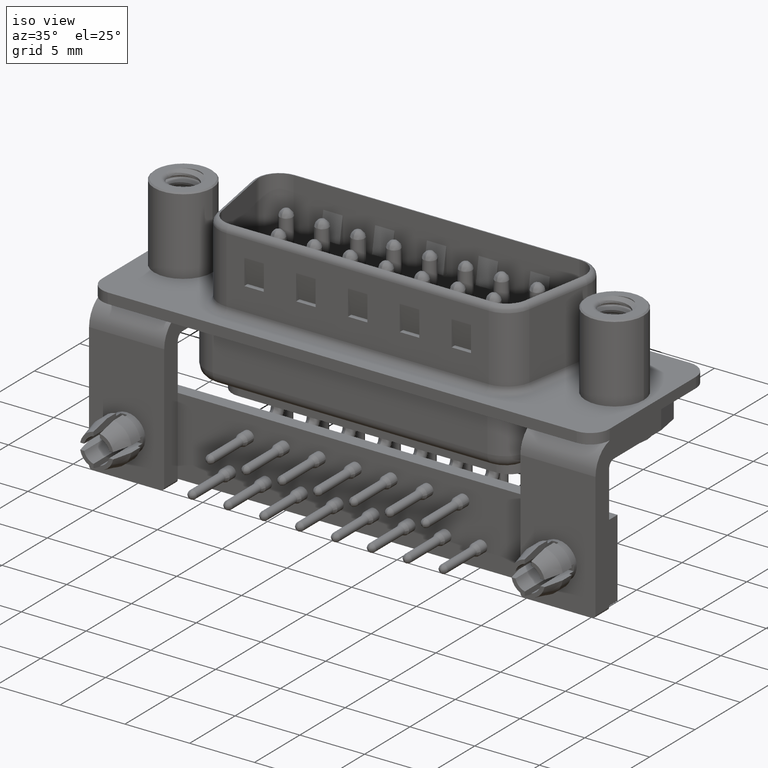
[diagram: clean part render]
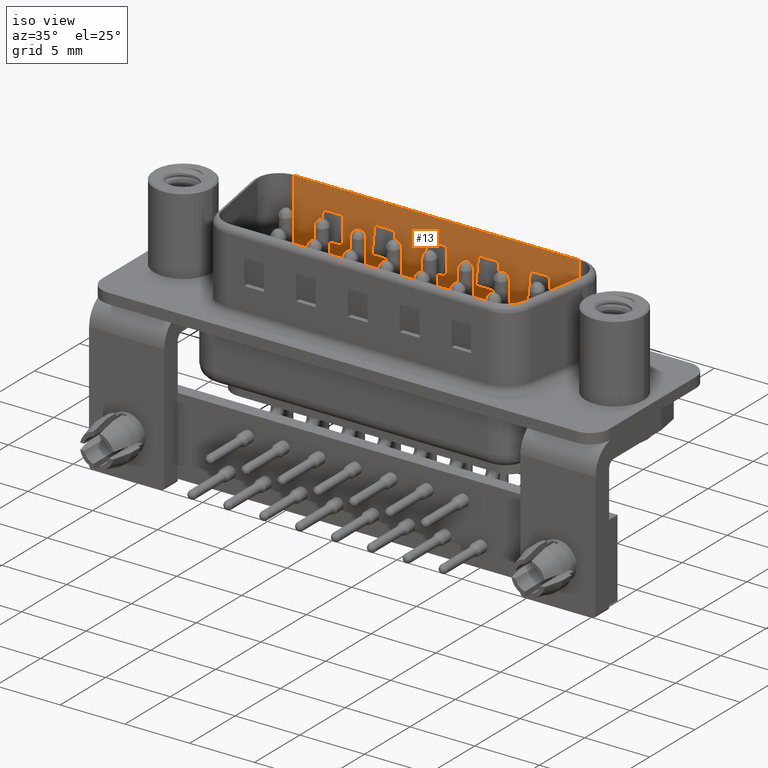
[diagram: same view with one face highlighted and labeled with its STEP entity id]
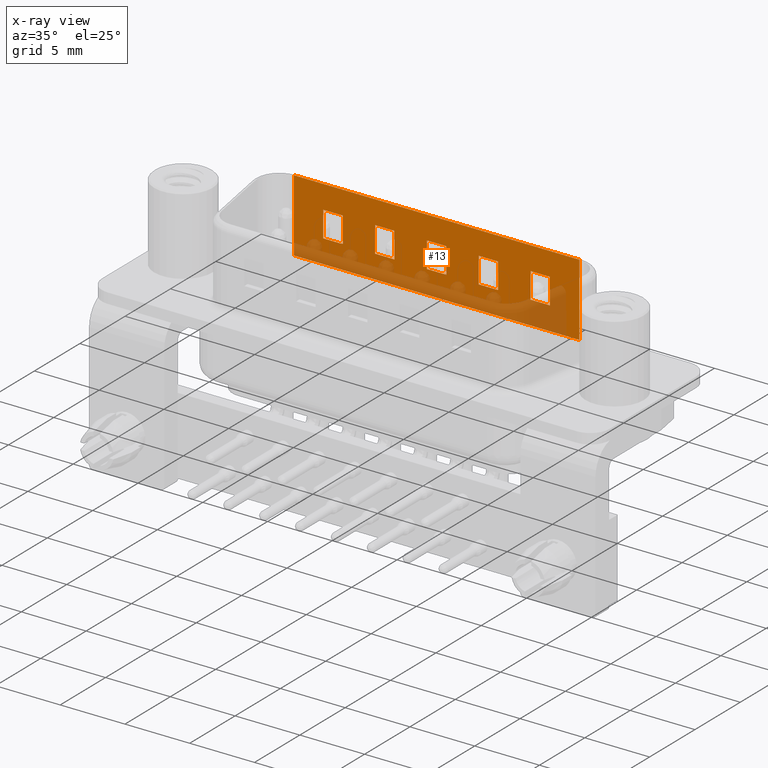
[diagram: x-ray of the same camera — body ghosted, the highlighted face saturated]
A machine part, iso view. The second image highlights one B-rep face of the part: STEP entity #13.
The next image is the same camera in x-ray: the body ghosted, the highlighted face saturated — about 26% of this face is hidden behind the body in this view.
In plain terms, the highlighted planar face has unit normal (0, -1, 0).
Its self-contained STEP definition (entity closure, byte-faithful):
#13 = ADVANCED_FACE ( 'NONE', ( #2399, #18294, #8007, #12863, #7350, #1719 ), #5921, .T. ) ;
#56 = VECTOR ( 'NONE', #4382, 1000.000000000000000 ) ;
#73 = LINE ( 'NONE', #7277, #5121 ) ;
#150 = VERTEX_POINT ( 'NONE', #9506 ) ;
#220 = VERTEX_POINT ( 'NONE', #15710 ) ;
#239 = DIRECTION ( 'NONE',  ( -0.0000000000000000000, 0.0000000000000000000, 1.000000000000000000 ) ) ;
#310 = VERTEX_POINT ( 'NONE', #27207 ) ;
#341 = EDGE_CURVE ( 'NONE', #23436, #21589, #27222, .T. ) ;
#427 = DIRECTION ( 'NONE',  ( 0.0000000000000000000, 0.0000000000000000000, -1.000000000000000000 ) ) ;
#456 = EDGE_CURVE ( 'NONE', #21723, #27129, #18266, .T. ) ;
#460 = ORIENTED_EDGE ( 'NONE', *, *, #5831, .F. ) ;
#664 = VECTOR ( 'NONE', #13524, 1000.000000000000000 ) ;
#694 = VERTEX_POINT ( 'NONE', #9833 ) ;
#769 = CARTESIAN_POINT ( 'NONE',  ( 5.624999999999994700, 4.149999999999994100, 4.704948974278316600 ) ) ;
#919 = VERTEX_POINT ( 'NONE', #9855 ) ;
#926 = VERTEX_POINT ( 'NONE', #6955 ) ;
#1103 = LINE ( 'NONE', #5698, #11665 ) ;
#1227 = CARTESIAN_POINT ( 'NONE',  ( 19.89999999999999500, 4.149999999999993200, 2.724867081101116600 ) ) ;
#1394 = EDGE_CURVE ( 'NONE', #919, #6876, #11569, .T. ) ;
#1441 = CARTESIAN_POINT ( 'NONE',  ( 1.624999999999994400, 4.149999999999994100, 2.704948974278317000 ) ) ;
#1573 = EDGE_CURVE ( 'NONE', #23644, #11174, #18583, .T. ) ;
#1682 = VERTEX_POINT ( 'NONE', #25752 ) ;
#1712 = VERTEX_POINT ( 'NONE', #21658 ) ;
#1719 = FACE_BOUND ( 'NONE', #11514, .T. ) ;
#1733 = DIRECTION ( 'NONE',  ( -0.0000000000000000000, 0.0000000000000000000, 1.000000000000000000 ) ) ;
#1798 = ORIENTED_EDGE ( 'NONE', *, *, #26922, .F. ) ;
#1858 = VECTOR ( 'NONE', #18512, 1000.000000000000000 ) ;
#1937 = CARTESIAN_POINT ( 'NONE',  ( 23.89999999999999500, 4.149999999999993200, 2.724867081101116600 ) ) ;
#1957 = VECTOR ( 'NONE', #19926, 1000.000000000000000 ) ;
#2009 = ORIENTED_EDGE ( 'NONE', *, *, #24426, .F. ) ;
#2027 = VECTOR ( 'NONE', #19900, 1000.000000000000000 ) ;
#2088 = VECTOR ( 'NONE', #427, 1000.000000000000000 ) ;
#2165 = VERTEX_POINT ( 'NONE', #15493 ) ;
#2191 = EDGE_CURVE ( 'NONE', #13900, #310, #6974, .T. ) ;
#2368 = VECTOR ( 'NONE', #13812, 1000.000000000000000 ) ;
#2397 = CARTESIAN_POINT ( 'NONE',  ( 19.89999999999999500, 4.149999999999994100, 2.704948974278317000 ) ) ;
#2399 = FACE_OUTER_BOUND ( 'NONE', #15885, .T. ) ;
#2437 = VECTOR ( 'NONE', #8133, 1000.000000000000000 ) ;
#2475 = EDGE_CURVE ( 'NONE', #926, #19681, #26831, .T. ) ;
#2478 = LINE ( 'NONE', #3184, #19669 ) ;
#2655 = VERTEX_POINT ( 'NONE', #17473 ) ;
#3184 = CARTESIAN_POINT ( 'NONE',  ( 11.89999999999999300, 4.149999999999994100, 6.520000000000000500 ) ) ;
#3186 = CARTESIAN_POINT ( 'NONE',  ( 21.39999999999999100, 4.149999999999989700, 2.704948974278317000 ) ) ;
#3203 = ORIENTED_EDGE ( 'NONE', *, *, #15417, .F. ) ;
#3664 = ORIENTED_EDGE ( 'NONE', *, *, #18358, .F. ) ;
#3677 = EDGE_CURVE ( 'NONE', #23435, #919, #22025, .T. ) ;
#3999 = EDGE_CURVE ( 'NONE', #23173, #10489, #15522, .T. ) ;
#4382 = DIRECTION ( 'NONE',  ( 0.0000000000000000000, 0.0000000000000000000, -1.000000000000000000 ) ) ;
#4739 = EDGE_CURVE ( 'NONE', #13028, #150, #1103, .T. ) ;
#4947 = VECTOR ( 'NONE', #18346, 1000.000000000000000 ) ;
#5121 = VECTOR ( 'NONE', #11470, 1000.000000000000000 ) ;
#5334 = LINE ( 'NONE', #8179, #26210 ) ;
#5604 = DIRECTION ( 'NONE',  ( 0.0000000000000000000, -1.000000000000000000, 0.0000000000000000000 ) ) ;
#5605 = DIRECTION ( 'NONE',  ( -0.0000000000000000000, 0.0000000000000000000, 1.000000000000000000 ) ) ;
#5696 = DIRECTION ( 'NONE',  ( 0.0000000000000000000, -0.0000000000000000000, -1.000000000000000000 ) ) ;
#5698 = CARTESIAN_POINT ( 'NONE',  ( 21.39999999999999100, 4.149999999999994100, 6.520000000000000500 ) ) ;
#5831 = EDGE_CURVE ( 'NONE', #11174, #22826, #16747, .T. ) ;
#5921 = PLANE ( 'NONE',  #6023 ) ;
#6023 = AXIS2_PLACEMENT_3D ( 'NONE', #19923, #5604, #5696 ) ;
#6312 = VECTOR ( 'NONE', #239, 1000.000000000000000 ) ;
#6453 = CARTESIAN_POINT ( 'NONE',  ( 15.89999999999999000, 4.149999999999994100, 2.704948974278317000 ) ) ;
#6666 = ORIENTED_EDGE ( 'NONE', *, *, #17248, .F. ) ;
#6695 = VECTOR ( 'NONE', #24115, 1000.000000000000000 ) ;
#6767 = CARTESIAN_POINT ( 'NONE',  ( 21.39999999999999100, 4.149999999999989700, 4.704948974278316600 ) ) ;
#6818 = DIRECTION ( 'NONE',  ( -1.000000000000000000, 0.0000000000000000000, 0.0000000000000000000 ) ) ;
#6876 = VERTEX_POINT ( 'NONE', #20628 ) ;
#6955 = CARTESIAN_POINT ( 'NONE',  ( 11.89999999999999300, 4.149999999999989700, 4.704948974278316600 ) ) ;
#6974 = LINE ( 'NONE', #12869, #6312 ) ;
#7204 = VERTEX_POINT ( 'NONE', #21816 ) ;
#7277 = CARTESIAN_POINT ( 'NONE',  ( 5.624999999999994700, 4.149999999999994100, 2.704948974278317000 ) ) ;
#7350 = FACE_BOUND ( 'NONE', #17813, .T. ) ;
#7533 = VERTEX_POINT ( 'NONE', #6453 ) ;
#7565 = CARTESIAN_POINT ( 'NONE',  ( 25.39999999999999100, 4.149999999999994100, 6.520000000000000500 ) ) ;
#7587 = LINE ( 'NONE', #13683, #1957 ) ;
#7644 = CARTESIAN_POINT ( 'NONE',  ( 5.624999999999994700, 4.149999999999994100, 6.520000000000000500 ) ) ;
#7716 = ORIENTED_EDGE ( 'NONE', *, *, #2191, .F. ) ;
#7810 = EDGE_CURVE ( 'NONE', #15138, #23435, #8306, .T. ) ;
#7949 = VECTOR ( 'NONE', #25595, 1000.000000000000000 ) ;
#8007 = FACE_BOUND ( 'NONE', #9767, .T. ) ;
#8036 = ORIENTED_EDGE ( 'NONE', *, *, #3999, .F. ) ;
#8130 = CARTESIAN_POINT ( 'NONE',  ( 17.39999999999999100, 4.149999999999989700, 2.704948974278317000 ) ) ;
#8133 = DIRECTION ( 'NONE',  ( 0.0000000000000000000, 0.0000000000000000000, -1.000000000000000000 ) ) ;
#8179 = CARTESIAN_POINT ( 'NONE',  ( 15.89999999999999300, 4.149999999999994100, 6.520000000000000500 ) ) ;
#8217 = LINE ( 'NONE', #11238, #24781 ) ;
#8278 = DIRECTION ( 'NONE',  ( 1.000000000000000000, 0.0000000000000000000, 0.0000000000000000000 ) ) ;
#8306 = LINE ( 'NONE', #25918, #13787 ) ;
#8316 = DIRECTION ( 'NONE',  ( 0.0000000000000000000, 0.0000000000000000000, -1.000000000000000000 ) ) ;
#8539 = CARTESIAN_POINT ( 'NONE',  ( 27.67499999999999400, 4.149999999999994100, 6.500000000000000000 ) ) ;
#8667 = DIRECTION ( 'NONE',  ( 0.0000000000000000000, 0.0000000000000000000, -1.000000000000000000 ) ) ;
#8712 = DIRECTION ( 'NONE',  ( -1.000000000000000000, 0.0000000000000000000, 0.0000000000000000000 ) ) ;
#8788 = EDGE_CURVE ( 'NONE', #23604, #21723, #27151, .T. ) ;
#8869 = ORIENTED_EDGE ( 'NONE', *, *, #26240, .F. ) ;
#9005 = ORIENTED_EDGE ( 'NONE', *, *, #26636, .F. ) ;
#9079 = ORIENTED_EDGE ( 'NONE', *, *, #7810, .F. ) ;
#9251 = ORIENTED_EDGE ( 'NONE', *, *, #11319, .F. ) ;
#9506 = CARTESIAN_POINT ( 'NONE',  ( 21.39999999999999100, 4.149999999999993200, 2.724867081101116600 ) ) ;
#9611 = CARTESIAN_POINT ( 'NONE',  ( 9.399999999999993200, 4.149999999999994100, 6.520000000000000500 ) ) ;
#9644 = VECTOR ( 'NONE', #8316, 1000.000000000000000 ) ;
#9647 = DIRECTION ( 'NONE',  ( -0.0000000000000000000, 0.0000000000000000000, 1.000000000000000000 ) ) ;
#9741 = DIRECTION ( 'NONE',  ( -0.0000000000000000000, -0.0000000000000000000, -1.000000000000000000 ) ) ;
#9767 = EDGE_LOOP ( 'NONE', ( #26127, #26336, #3203, #20969, #24113, #3664 ) ) ;
#9833 = CARTESIAN_POINT ( 'NONE',  ( 7.899999999999994100, 4.149999999999994100, 2.704948974278317000 ) ) ;
#9855 = CARTESIAN_POINT ( 'NONE',  ( 27.67499999999999400, 4.149999999999994100, 0.8999999999999998000 ) ) ;
#10072 = VECTOR ( 'NONE', #8278, 1000.000000000000000 ) ;
#10090 = VECTOR ( 'NONE', #14122, 1000.000000000000000 ) ;
#10124 = DIRECTION ( 'NONE',  ( -0.0000000000000000000, 0.0000000000000000000, 1.000000000000000000 ) ) ;
#10266 = VERTEX_POINT ( 'NONE', #6767 ) ;
#10288 = EDGE_LOOP ( 'NONE', ( #25810, #2009, #9005, #26943, #11693, #23045 ) ) ;
#10330 = VECTOR ( 'NONE', #8712, 1000.000000000000000 ) ;
#10396 = VECTOR ( 'NONE', #24980, 1000.000000000000000 ) ;
#10472 = ORIENTED_EDGE ( 'NONE', *, *, #456, .F. ) ;
#10489 = VERTEX_POINT ( 'NONE', #21920 ) ;
#10610 = CARTESIAN_POINT ( 'NONE',  ( 13.62499999999999500, 4.149999999999994100, 4.704948974278316600 ) ) ;
#10660 = VECTOR ( 'NONE', #15395, 1000.000000000000000 ) ;
#10669 = EDGE_CURVE ( 'NONE', #310, #7204, #18925, .T. ) ;
#10697 = EDGE_CURVE ( 'NONE', #22826, #13028, #18288, .T. ) ;
#10873 = VECTOR ( 'NONE', #9647, 1000.000000000000000 ) ;
#11060 = CARTESIAN_POINT ( 'NONE',  ( -2.375000000000005800, 4.149999999999994100, 2.704948974278317000 ) ) ;
#11128 = CARTESIAN_POINT ( 'NONE',  ( 13.62499999999999500, 4.149999999999994100, 2.704948974278317000 ) ) ;
#11174 = VERTEX_POINT ( 'NONE', #1227 ) ;
#11238 = CARTESIAN_POINT ( 'NONE',  ( 13.39999999999999300, 4.149999999999994100, 6.520000000000000500 ) ) ;
#11319 = EDGE_CURVE ( 'NONE', #19112, #7533, #5334, .T. ) ;
#11470 = DIRECTION ( 'NONE',  ( 1.000000000000000000, 0.0000000000000000000, 0.0000000000000000000 ) ) ;
#11514 = EDGE_LOOP ( 'NONE', ( #7716, #16245, #9251, #21549, #11944, #13276 ) ) ;
#11569 = LINE ( 'NONE', #18110, #16342 ) ;
#11665 = VECTOR ( 'NONE', #5605, 1000.000000000000000 ) ;
#11693 = ORIENTED_EDGE ( 'NONE', *, *, #15088, .F. ) ;
#11761 = EDGE_LOOP ( 'NONE', ( #6666, #8036, #8869, #25647, #10472, #16989 ) ) ;
#11835 = CARTESIAN_POINT ( 'NONE',  ( 23.89999999999999500, 4.149999999999994100, 2.704948974278317000 ) ) ;
#11935 = DIRECTION ( 'NONE',  ( 1.000000000000000000, 0.0000000000000000000, 0.0000000000000000000 ) ) ;
#11944 = ORIENTED_EDGE ( 'NONE', *, *, #17149, .F. ) ;
#12124 = CARTESIAN_POINT ( 'NONE',  ( 21.39999999999999500, 4.149999999999994100, 6.520000000000000500 ) ) ;
#12205 = CARTESIAN_POINT ( 'NONE',  ( 17.39999999999999500, 4.149999999999994100, 6.520000000000000500 ) ) ;
#12364 = DIRECTION ( 'NONE',  ( 0.0000000000000000000, 0.0000000000000000000, -1.000000000000000000 ) ) ;
#12449 = DIRECTION ( 'NONE',  ( 0.0000000000000000000, 0.0000000000000000000, -1.000000000000000000 ) ) ;
#12568 = LINE ( 'NONE', #1441, #22877 ) ;
#12863 = FACE_BOUND ( 'NONE', #10288, .T. ) ;
#12869 = CARTESIAN_POINT ( 'NONE',  ( 17.39999999999999100, 4.149999999999994100, 6.520000000000000500 ) ) ;
#12979 = CARTESIAN_POINT ( 'NONE',  ( 9.624999999999994700, 4.149999999999994100, 4.704948974278316600 ) ) ;
#13028 = VERTEX_POINT ( 'NONE', #3186 ) ;
#13227 = LINE ( 'NONE', #23346, #2088 ) ;
#13276 = ORIENTED_EDGE ( 'NONE', *, *, #10669, .F. ) ;
#13408 = CARTESIAN_POINT ( 'NONE',  ( 19.89999999999999500, 4.149999999999989700, 4.704948974278316600 ) ) ;
#13524 = DIRECTION ( 'NONE',  ( -0.0000000000000000000, 0.0000000000000000000, 1.000000000000000000 ) ) ;
#13683 = CARTESIAN_POINT ( 'NONE',  ( 7.899999999999994100, 4.149999999999994100, 6.520000000000000500 ) ) ;
#13787 = VECTOR ( 'NONE', #19582, 1000.000000000000000 ) ;
#13812 = DIRECTION ( 'NONE',  ( -1.000000000000000000, 0.0000000000000000000, 0.0000000000000000000 ) ) ;
#13860 = EDGE_CURVE ( 'NONE', #150, #10266, #14924, .T. ) ;
#13900 = VERTEX_POINT ( 'NONE', #8130 ) ;
#14122 = DIRECTION ( 'NONE',  ( -0.0000000000000000000, 0.0000000000000000000, 1.000000000000000000 ) ) ;
#14324 = VERTEX_POINT ( 'NONE', #21922 ) ;
#14448 = CARTESIAN_POINT ( 'NONE',  ( 7.899999999999994100, 4.149999999999994100, 6.520000000000000500 ) ) ;
#14487 = CARTESIAN_POINT ( 'NONE',  ( -2.375000000000005800, 4.149999999999994100, 4.704948974278316600 ) ) ;
#14924 = LINE ( 'NONE', #12124, #26089 ) ;
#15088 = EDGE_CURVE ( 'NONE', #2165, #2655, #15832, .T. ) ;
#15092 = LINE ( 'NONE', #14448, #9644 ) ;
#15138 = VERTEX_POINT ( 'NONE', #22992 ) ;
#15395 = DIRECTION ( 'NONE',  ( -1.000000000000000000, 0.0000000000000000000, 0.0000000000000000000 ) ) ;
#15412 = LINE ( 'NONE', #12979, #20224 ) ;
#15417 = EDGE_CURVE ( 'NONE', #19681, #220, #2478, .T. ) ;
#15493 = CARTESIAN_POINT ( 'NONE',  ( 9.399999999999991500, 4.149999999999989700, 4.704948974278316600 ) ) ;
#15522 = LINE ( 'NONE', #11128, #10072 ) ;
#15538 = LINE ( 'NONE', #26649, #10090 ) ;
#15637 = VERTEX_POINT ( 'NONE', #26816 ) ;
#15710 = CARTESIAN_POINT ( 'NONE',  ( 11.89999999999999300, 4.149999999999994100, 2.704948974278317000 ) ) ;
#15772 = LINE ( 'NONE', #21031, #10330 ) ;
#15832 = LINE ( 'NONE', #14487, #10396 ) ;
#15885 = EDGE_LOOP ( 'NONE', ( #9079, #23097, #22844, #24808 ) ) ;
#16245 = ORIENTED_EDGE ( 'NONE', *, *, #20726, .F. ) ;
#16297 = LINE ( 'NONE', #7565, #10873 ) ;
#16342 = VECTOR ( 'NONE', #18922, 1000.000000000000000 ) ;
#16378 = CARTESIAN_POINT ( 'NONE',  ( 9.624999999999994700, 4.149999999999994100, 2.704948974278317000 ) ) ;
#16512 = ORIENTED_EDGE ( 'NONE', *, *, #1573, .F. ) ;
#16747 = LINE ( 'NONE', #18703, #56 ) ;
#16989 = ORIENTED_EDGE ( 'NONE', *, *, #8788, .F. ) ;
#17149 = EDGE_CURVE ( 'NONE', #7204, #1682, #21577, .T. ) ;
#17248 = EDGE_CURVE ( 'NONE', #10489, #23604, #16297, .T. ) ;
#17473 = CARTESIAN_POINT ( 'NONE',  ( 7.899999999999994100, 4.149999999999989700, 4.704948974278316600 ) ) ;
#17637 = VECTOR ( 'NONE', #26871, 1000.000000000000000 ) ;
#17667 = DIRECTION ( 'NONE',  ( 0.0000000000000000000, 0.0000000000000000000, -1.000000000000000000 ) ) ;
#17813 = EDGE_LOOP ( 'NONE', ( #23902, #22081, #460, #16512, #1798, #26450 ) ) ;
#17870 = EDGE_CURVE ( 'NONE', #2655, #15637, #7587, .T. ) ;
#17916 = LINE ( 'NONE', #22725, #22829 ) ;
#18020 = CARTESIAN_POINT ( 'NONE',  ( 9.399999999999991500, 4.149999999999989700, 2.704948974278317000 ) ) ;
#18079 = CARTESIAN_POINT ( 'NONE',  ( 15.89999999999999300, 4.149999999999993200, 2.724867081101116600 ) ) ;
#18110 = CARTESIAN_POINT ( 'NONE',  ( 5.624999999999994700, 4.149999999999994100, 0.8999999999999998000 ) ) ;
#18266 = LINE ( 'NONE', #10610, #2368 ) ;
#18288 = LINE ( 'NONE', #16378, #17637 ) ;
#18294 = FACE_BOUND ( 'NONE', #11761, .T. ) ;
#18333 = LINE ( 'NONE', #20441, #2437 ) ;
#18346 = DIRECTION ( 'NONE',  ( -0.0000000000000000000, 0.0000000000000000000, 1.000000000000000000 ) ) ;
#18358 = EDGE_CURVE ( 'NONE', #21589, #14324, #8217, .T. ) ;
#18512 = DIRECTION ( 'NONE',  ( 0.0000000000000000000, -0.0000000000000000000, -1.000000000000000000 ) ) ;
#18583 = LINE ( 'NONE', #22871, #2027 ) ;
#18666 = CARTESIAN_POINT ( 'NONE',  ( 27.67499999999999400, 4.149999999999994100, 6.520000000000000500 ) ) ;
#18703 = CARTESIAN_POINT ( 'NONE',  ( 19.89999999999999500, 4.149999999999994100, 6.520000000000000500 ) ) ;
#18922 = DIRECTION ( 'NONE',  ( -1.000000000000000000, -0.0000000000000000000, -0.0000000000000000000 ) ) ;
#18925 = LINE ( 'NONE', #12205, #23880 ) ;
#19112 = VERTEX_POINT ( 'NONE', #18079 ) ;
#19582 = DIRECTION ( 'NONE',  ( 1.000000000000000000, 0.0000000000000000000, 0.0000000000000000000 ) ) ;
#19669 = VECTOR ( 'NONE', #17667, 1000.000000000000000 ) ;
#19681 = VERTEX_POINT ( 'NONE', #19932 ) ;
#19781 = EDGE_CURVE ( 'NONE', #26458, #1712, #15538, .T. ) ;
#19900 = DIRECTION ( 'NONE',  ( 0.0000000000000000000, 0.0000000000000000000, -1.000000000000000000 ) ) ;
#19923 = CARTESIAN_POINT ( 'NONE',  ( 5.624999999999994700, 4.149999999999994100, 6.520000000000000500 ) ) ;
#19926 = DIRECTION ( 'NONE',  ( 0.0000000000000000000, 0.0000000000000000000, -1.000000000000000000 ) ) ;
#19932 = CARTESIAN_POINT ( 'NONE',  ( 11.89999999999999300, 4.149999999999993200, 2.724867081101116600 ) ) ;
#20224 = VECTOR ( 'NONE', #6818, 1000.000000000000000 ) ;
#20441 = CARTESIAN_POINT ( 'NONE',  ( 15.89999999999999300, 4.149999999999994100, 6.520000000000000500 ) ) ;
#20628 = CARTESIAN_POINT ( 'NONE',  ( 5.624999999999994700, 4.149999999999994100, 0.8999999999999998000 ) ) ;
#20706 = CARTESIAN_POINT ( 'NONE',  ( 13.39999999999999100, 4.149999999999993200, 2.724867081101116600 ) ) ;
#20726 = EDGE_CURVE ( 'NONE', #7533, #13900, #73, .T. ) ;
#20850 = CARTESIAN_POINT ( 'NONE',  ( 13.39999999999999100, 4.149999999999989700, 2.704948974278317000 ) ) ;
#20969 = ORIENTED_EDGE ( 'NONE', *, *, #2475, .F. ) ;
#21031 = CARTESIAN_POINT ( 'NONE',  ( 1.624999999999994400, 4.149999999999994100, 4.704948974278316600 ) ) ;
#21130 = VECTOR ( 'NONE', #8667, 1000.000000000000000 ) ;
#21487 = EDGE_CURVE ( 'NONE', #1682, #19112, #18333, .T. ) ;
#21529 = VERTEX_POINT ( 'NONE', #1937 ) ;
#21549 = ORIENTED_EDGE ( 'NONE', *, *, #21487, .F. ) ;
#21577 = LINE ( 'NONE', #769, #10660 ) ;
#21589 = VERTEX_POINT ( 'NONE', #20706 ) ;
#21658 = CARTESIAN_POINT ( 'NONE',  ( 9.399999999999991500, 4.149999999999993200, 2.724867081101116600 ) ) ;
#21723 = VERTEX_POINT ( 'NONE', #25397 ) ;
#21816 = CARTESIAN_POINT ( 'NONE',  ( 17.39999999999999100, 4.149999999999989700, 4.704948974278316600 ) ) ;
#21838 = LINE ( 'NONE', #7644, #26870 ) ;
#21864 = CARTESIAN_POINT ( 'NONE',  ( 23.89999999999999500, 4.149999999999989700, 4.704948974278316600 ) ) ;
#21872 = LINE ( 'NONE', #9611, #6695 ) ;
#21920 = CARTESIAN_POINT ( 'NONE',  ( 25.39999999999999100, 4.149999999999989700, 2.704948974278317000 ) ) ;
#21922 = CARTESIAN_POINT ( 'NONE',  ( 13.39999999999999100, 4.149999999999989700, 4.704948974278316600 ) ) ;
#22025 = LINE ( 'NONE', #18666, #1858 ) ;
#22081 = ORIENTED_EDGE ( 'NONE', *, *, #10697, .F. ) ;
#22725 = CARTESIAN_POINT ( 'NONE',  ( 23.89999999999999500, 4.149999999999994100, 6.520000000000000500 ) ) ;
#22826 = VERTEX_POINT ( 'NONE', #2397 ) ;
#22829 = VECTOR ( 'NONE', #12449, 1000.000000000000000 ) ;
#22844 = ORIENTED_EDGE ( 'NONE', *, *, #1394, .F. ) ;
#22871 = CARTESIAN_POINT ( 'NONE',  ( 19.89999999999999500, 4.149999999999994100, 6.520000000000000500 ) ) ;
#22877 = VECTOR ( 'NONE', #11935, 1000.000000000000000 ) ;
#22992 = CARTESIAN_POINT ( 'NONE',  ( 5.624999999999994700, 4.149999999999994100, 6.500000000000000000 ) ) ;
#23045 = ORIENTED_EDGE ( 'NONE', *, *, #27135, .F. ) ;
#23097 = ORIENTED_EDGE ( 'NONE', *, *, #23151, .T. ) ;
#23151 = EDGE_CURVE ( 'NONE', #15138, #6876, #21838, .T. ) ;
#23173 = VERTEX_POINT ( 'NONE', #11835 ) ;
#23344 = EDGE_CURVE ( 'NONE', #27129, #21529, #17916, .T. ) ;
#23346 = CARTESIAN_POINT ( 'NONE',  ( 23.89999999999999500, 4.149999999999994100, 6.520000000000000500 ) ) ;
#23435 = VERTEX_POINT ( 'NONE', #8539 ) ;
#23436 = VERTEX_POINT ( 'NONE', #20850 ) ;
#23545 = CARTESIAN_POINT ( 'NONE',  ( 25.39999999999999100, 4.149999999999993200, 2.724867081101116600 ) ) ;
#23604 = VERTEX_POINT ( 'NONE', #23545 ) ;
#23644 = VERTEX_POINT ( 'NONE', #13408 ) ;
#23880 = VECTOR ( 'NONE', #1733, 1000.000000000000000 ) ;
#23902 = ORIENTED_EDGE ( 'NONE', *, *, #4739, .F. ) ;
#24113 = ORIENTED_EDGE ( 'NONE', *, *, #26154, .F. ) ;
#24115 = DIRECTION ( 'NONE',  ( -0.0000000000000000000, 0.0000000000000000000, 1.000000000000000000 ) ) ;
#24426 = EDGE_CURVE ( 'NONE', #694, #26458, #24518, .T. ) ;
#24518 = LINE ( 'NONE', #11060, #7949 ) ;
#24781 = VECTOR ( 'NONE', #25800, 1000.000000000000000 ) ;
#24808 = ORIENTED_EDGE ( 'NONE', *, *, #3677, .F. ) ;
#24943 = CARTESIAN_POINT ( 'NONE',  ( 13.39999999999999100, 4.149999999999994100, 6.520000000000000500 ) ) ;
#24980 = DIRECTION ( 'NONE',  ( -1.000000000000000000, 0.0000000000000000000, 0.0000000000000000000 ) ) ;
#25397 = CARTESIAN_POINT ( 'NONE',  ( 25.39999999999999100, 4.149999999999989700, 4.704948974278316600 ) ) ;
#25595 = DIRECTION ( 'NONE',  ( 1.000000000000000000, 0.0000000000000000000, 0.0000000000000000000 ) ) ;
#25647 = ORIENTED_EDGE ( 'NONE', *, *, #23344, .F. ) ;
#25752 = CARTESIAN_POINT ( 'NONE',  ( 15.89999999999999300, 4.149999999999989700, 4.704948974278316600 ) ) ;
#25800 = DIRECTION ( 'NONE',  ( -0.0000000000000000000, 0.0000000000000000000, 1.000000000000000000 ) ) ;
#25810 = ORIENTED_EDGE ( 'NONE', *, *, #19781, .F. ) ;
#25918 = CARTESIAN_POINT ( 'NONE',  ( 5.624999999999994700, 4.149999999999994100, 6.500000000000000000 ) ) ;
#26089 = VECTOR ( 'NONE', #10124, 1000.000000000000000 ) ;
#26127 = ORIENTED_EDGE ( 'NONE', *, *, #341, .F. ) ;
#26154 = EDGE_CURVE ( 'NONE', #14324, #926, #15772, .T. ) ;
#26210 = VECTOR ( 'NONE', #12364, 1000.000000000000000 ) ;
#26240 = EDGE_CURVE ( 'NONE', #21529, #23173, #13227, .T. ) ;
#26336 = ORIENTED_EDGE ( 'NONE', *, *, #26799, .F. ) ;
#26450 = ORIENTED_EDGE ( 'NONE', *, *, #13860, .F. ) ;
#26458 = VERTEX_POINT ( 'NONE', #18020 ) ;
#26611 = CARTESIAN_POINT ( 'NONE',  ( 11.89999999999999300, 4.149999999999994100, 6.520000000000000500 ) ) ;
#26636 = EDGE_CURVE ( 'NONE', #15637, #694, #15092, .T. ) ;
#26649 = CARTESIAN_POINT ( 'NONE',  ( 9.399999999999991500, 4.149999999999994100, 6.520000000000000500 ) ) ;
#26778 = CARTESIAN_POINT ( 'NONE',  ( 25.39999999999999500, 4.149999999999994100, 6.520000000000000500 ) ) ;
#26799 = EDGE_CURVE ( 'NONE', #220, #23436, #12568, .T. ) ;
#26816 = CARTESIAN_POINT ( 'NONE',  ( 7.899999999999994100, 4.149999999999993200, 2.724867081101116600 ) ) ;
#26831 = LINE ( 'NONE', #26611, #21130 ) ;
#26870 = VECTOR ( 'NONE', #9741, 1000.000000000000000 ) ;
#26871 = DIRECTION ( 'NONE',  ( 1.000000000000000000, 0.0000000000000000000, 0.0000000000000000000 ) ) ;
#26922 = EDGE_CURVE ( 'NONE', #10266, #23644, #15412, .T. ) ;
#26943 = ORIENTED_EDGE ( 'NONE', *, *, #17870, .F. ) ;
#27129 = VERTEX_POINT ( 'NONE', #21864 ) ;
#27135 = EDGE_CURVE ( 'NONE', #1712, #2165, #21872, .T. ) ;
#27151 = LINE ( 'NONE', #26778, #4947 ) ;
#27207 = CARTESIAN_POINT ( 'NONE',  ( 17.39999999999999100, 4.149999999999993200, 2.724867081101116600 ) ) ;
#27222 = LINE ( 'NONE', #24943, #664 ) ;